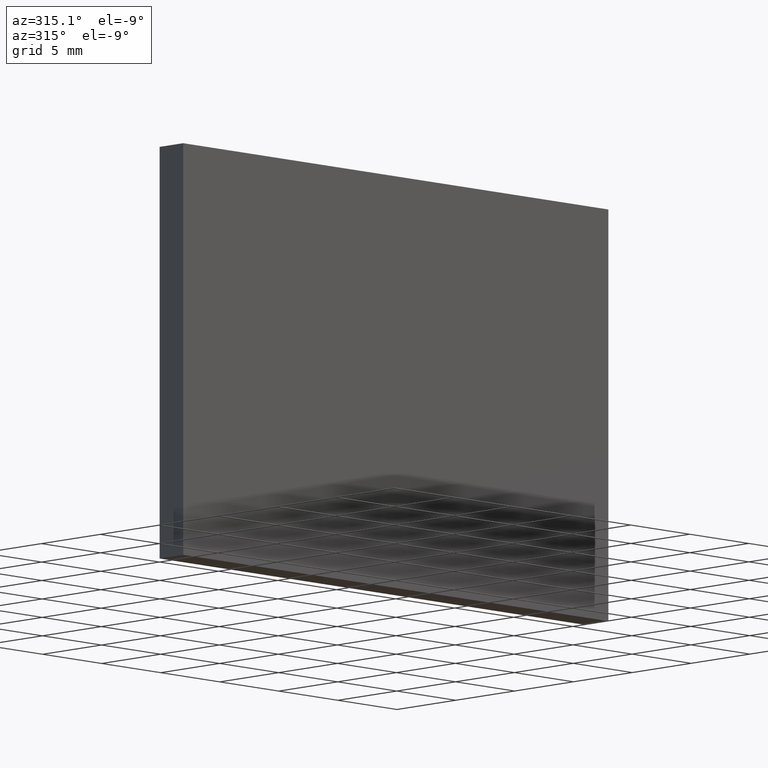
[diagram: clean part render]
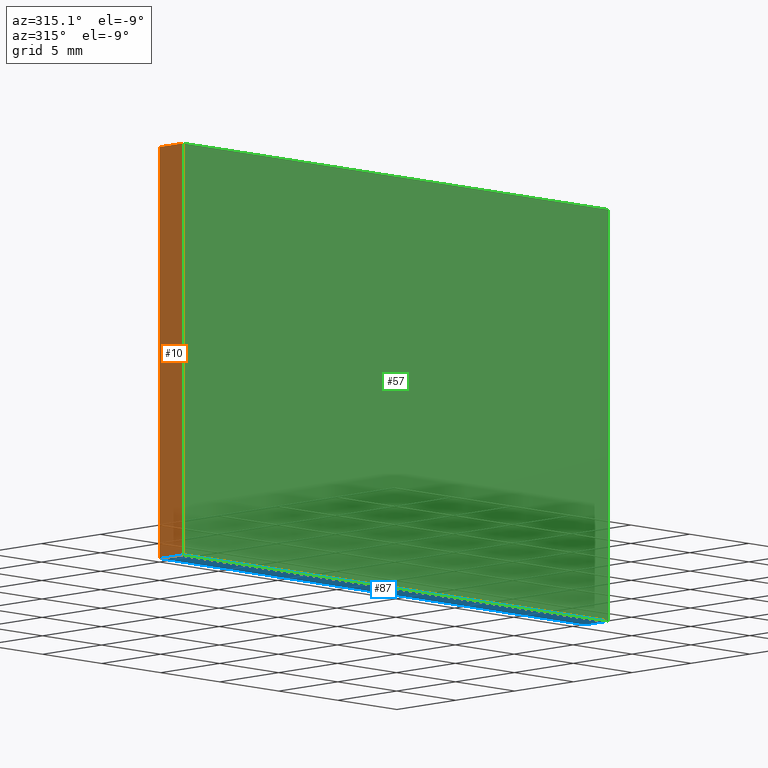
[diagram: same view with three faces highlighted in distinct colors, each labeled with its STEP entity id]
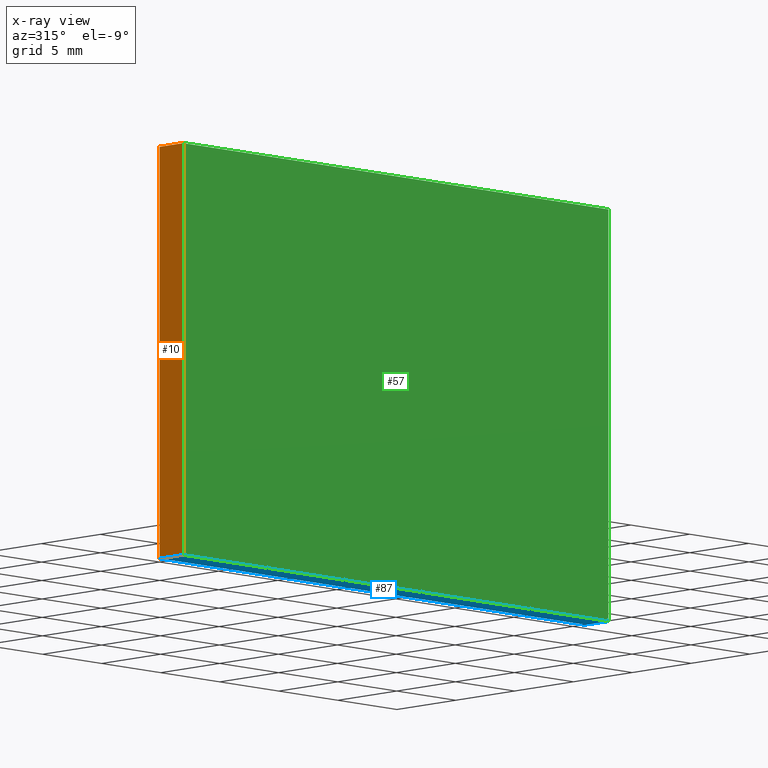
[diagram: x-ray of the same camera — body ghosted, the three highlighted faces saturated]
A machine part, auxiliary view with three faces highlighted in distinct colors.
The next image is the same camera in x-ray (body ghosted, the three faces saturated) — at least one of them is partly hidden behind the body in this view.
Their STEP definitions:

[orange] entity #10 — the highlighted planar face has unit normal (1, 0, 0).
#10 = ADVANCED_FACE ( 'NONE', ( #156 ), #88, .F. ) ;
#17 = VECTOR ( 'NONE', #43, 1000.000000000000000 ) ;
#19 = AXIS2_PLACEMENT_3D ( 'NONE', #151, #45, #133 ) ;
#20 = LINE ( 'NONE', #89, #17 ) ;
#21 = VERTEX_POINT ( 'NONE', #117 ) ;
#22 = DIRECTION ( 'NONE',  ( 0.0000000000000000000, 0.0000000000000000000, 1.000000000000000000 ) ) ;
#23 = DIRECTION ( 'NONE',  ( -0.0000000000000000000, -1.000000000000000000, -0.0000000000000000000 ) ) ;
#28 = CARTESIAN_POINT ( 'NONE',  ( -18.00000000000000400, 2.000000000000000000, -12.49999999999999800 ) ) ;
#30 = ORIENTED_EDGE ( 'NONE', *, *, #51, .F. ) ;
#39 = CARTESIAN_POINT ( 'NONE',  ( -18.00000000000000400, 0.0000000000000000000, -12.49999999999999800 ) ) ;
#43 = DIRECTION ( 'NONE',  ( 0.0000000000000000000, 0.0000000000000000000, 1.000000000000000000 ) ) ;
#45 = DIRECTION ( 'NONE',  ( 1.000000000000000000, 0.0000000000000000000, 0.0000000000000000000 ) ) ;
#47 = EDGE_CURVE ( 'NONE', #162, #122, #137, .T. ) ;
#51 = EDGE_CURVE ( 'NONE', #162, #21, #20, .T. ) ;
#53 = LINE ( 'NONE', #39, #132 ) ;
#56 = ORIENTED_EDGE ( 'NONE', *, *, #67, .F. ) ;
#66 = ORIENTED_EDGE ( 'NONE', *, *, #47, .T. ) ;
#67 = EDGE_CURVE ( 'NONE', #21, #171, #181, .T. ) ;
#88 = PLANE ( 'NONE',  #19 ) ;
#89 = CARTESIAN_POINT ( 'NONE',  ( -18.00000000000000400, 2.000000000000000000, -12.49999999999999800 ) ) ;
#90 = CARTESIAN_POINT ( 'NONE',  ( -18.00000000000000400, 2.000000000000000000, -12.49999999999999800 ) ) ;
#92 = ORIENTED_EDGE ( 'NONE', *, *, #108, .T. ) ;
#97 = VECTOR ( 'NONE', #114, 1000.000000000000000 ) ;
#101 = CARTESIAN_POINT ( 'NONE',  ( -18.00000000000000400, 0.0000000000000000000, 12.50000000000000200 ) ) ;
#108 = EDGE_CURVE ( 'NONE', #122, #171, #53, .T. ) ;
#114 = DIRECTION ( 'NONE',  ( -0.0000000000000000000, -1.000000000000000000, -0.0000000000000000000 ) ) ;
#117 = CARTESIAN_POINT ( 'NONE',  ( -18.00000000000000400, 2.000000000000000000, 12.50000000000000200 ) ) ;
#122 = VERTEX_POINT ( 'NONE', #175 ) ;
#132 = VECTOR ( 'NONE', #22, 1000.000000000000000 ) ;
#133 = DIRECTION ( 'NONE',  ( 0.0000000000000000000, 0.0000000000000000000, -1.000000000000000000 ) ) ;
#137 = LINE ( 'NONE', #28, #97 ) ;
#140 = EDGE_LOOP ( 'NONE', ( #92, #56, #30, #66 ) ) ;
#151 = CARTESIAN_POINT ( 'NONE',  ( -18.00000000000000400, 2.000000000000000000, -12.49999999999999800 ) ) ;
#156 = FACE_OUTER_BOUND ( 'NONE', #140, .T. ) ;
#161 = CARTESIAN_POINT ( 'NONE',  ( -18.00000000000000400, 2.000000000000000000, 12.50000000000000200 ) ) ;
#162 = VERTEX_POINT ( 'NONE', #90 ) ;
#171 = VERTEX_POINT ( 'NONE', #101 ) ;
#172 = VECTOR ( 'NONE', #23, 1000.000000000000000 ) ;
#175 = CARTESIAN_POINT ( 'NONE',  ( -18.00000000000000400, 0.0000000000000000000, -12.49999999999999800 ) ) ;
#181 = LINE ( 'NONE', #161, #172 ) ;

[blue] entity #87 — the highlighted planar face has unit normal (0, 0, 1).
#3 = VERTEX_POINT ( 'NONE', #62 ) ;
#4 = EDGE_CURVE ( 'NONE', #95, #122, #116, .T. ) ;
#25 = DIRECTION ( 'NONE',  ( -1.000000000000000000, -0.0000000000000000000, -0.0000000000000000000 ) ) ;
#28 = CARTESIAN_POINT ( 'NONE',  ( -18.00000000000000400, 2.000000000000000000, -12.49999999999999800 ) ) ;
#29 = DIRECTION ( 'NONE',  ( -1.000000000000000000, -0.0000000000000000000, -0.0000000000000000000 ) ) ;
#36 = LINE ( 'NONE', #60, #110 ) ;
#41 = ORIENTED_EDGE ( 'NONE', *, *, #47, .F. ) ;
#47 = EDGE_CURVE ( 'NONE', #162, #122, #137, .T. ) ;
#60 = CARTESIAN_POINT ( 'NONE',  ( 17.99999999999999600, 2.000000000000000000, -12.49999999999999800 ) ) ;
#61 = CARTESIAN_POINT ( 'NONE',  ( -18.00000000000000400, 0.0000000000000000000, -12.49999999999999800 ) ) ;
#62 = CARTESIAN_POINT ( 'NONE',  ( 17.99999999999999600, 2.000000000000000000, -12.49999999999999800 ) ) ;
#65 = ORIENTED_EDGE ( 'NONE', *, *, #138, .F. ) ;
#71 = VECTOR ( 'NONE', #25, 1000.000000000000000 ) ;
#80 = VECTOR ( 'NONE', #29, 1000.000000000000000 ) ;
#87 = ADVANCED_FACE ( 'NONE', ( #169 ), #192, .F. ) ;
#90 = CARTESIAN_POINT ( 'NONE',  ( -18.00000000000000400, 2.000000000000000000, -12.49999999999999800 ) ) ;
#95 = VERTEX_POINT ( 'NONE', #177 ) ;
#96 = LINE ( 'NONE', #164, #71 ) ;
#97 = VECTOR ( 'NONE', #114, 1000.000000000000000 ) ;
#110 = VECTOR ( 'NONE', #148, 1000.000000000000000 ) ;
#114 = DIRECTION ( 'NONE',  ( -0.0000000000000000000, -1.000000000000000000, -0.0000000000000000000 ) ) ;
#116 = LINE ( 'NONE', #61, #80 ) ;
#122 = VERTEX_POINT ( 'NONE', #175 ) ;
#127 = ORIENTED_EDGE ( 'NONE', *, *, #131, .T. ) ;
#128 = DIRECTION ( 'NONE',  ( 0.0000000000000000000, 0.0000000000000000000, 1.000000000000000000 ) ) ;
#131 = EDGE_CURVE ( 'NONE', #3, #95, #36, .T. ) ;
#135 = EDGE_LOOP ( 'NONE', ( #191, #41, #65, #127 ) ) ;
#137 = LINE ( 'NONE', #28, #97 ) ;
#138 = EDGE_CURVE ( 'NONE', #3, #162, #96, .T. ) ;
#141 = AXIS2_PLACEMENT_3D ( 'NONE', #143, #128, #160 ) ;
#143 = CARTESIAN_POINT ( 'NONE',  ( -18.00000000000000400, 2.000000000000000000, -12.49999999999999800 ) ) ;
#148 = DIRECTION ( 'NONE',  ( -0.0000000000000000000, -1.000000000000000000, -0.0000000000000000000 ) ) ;
#160 = DIRECTION ( 'NONE',  ( 1.000000000000000000, 0.0000000000000000000, -0.0000000000000000000 ) ) ;
#162 = VERTEX_POINT ( 'NONE', #90 ) ;
#164 = CARTESIAN_POINT ( 'NONE',  ( -18.00000000000000400, 2.000000000000000000, -12.49999999999999800 ) ) ;
#169 = FACE_OUTER_BOUND ( 'NONE', #135, .T. ) ;
#175 = CARTESIAN_POINT ( 'NONE',  ( -18.00000000000000400, 0.0000000000000000000, -12.49999999999999800 ) ) ;
#177 = CARTESIAN_POINT ( 'NONE',  ( 17.99999999999999600, 0.0000000000000000000, -12.49999999999999800 ) ) ;
#191 = ORIENTED_EDGE ( 'NONE', *, *, #4, .T. ) ;
#192 = PLANE ( 'NONE',  #141 ) ;

[green] entity #57 — the highlighted planar face has unit normal (0, 1, 0).
#2 = VECTOR ( 'NONE', #142, 1000.000000000000000 ) ;
#4 = EDGE_CURVE ( 'NONE', #95, #122, #116, .T. ) ;
#18 = ORIENTED_EDGE ( 'NONE', *, *, #125, .F. ) ;
#22 = DIRECTION ( 'NONE',  ( 0.0000000000000000000, 0.0000000000000000000, 1.000000000000000000 ) ) ;
#29 = DIRECTION ( 'NONE',  ( -1.000000000000000000, -0.0000000000000000000, -0.0000000000000000000 ) ) ;
#34 = ORIENTED_EDGE ( 'NONE', *, *, #4, .F. ) ;
#39 = CARTESIAN_POINT ( 'NONE',  ( -18.00000000000000400, 0.0000000000000000000, -12.49999999999999800 ) ) ;
#42 = EDGE_LOOP ( 'NONE', ( #167, #18, #188, #34 ) ) ;
#53 = LINE ( 'NONE', #39, #132 ) ;
#57 = ADVANCED_FACE ( 'NONE', ( #59 ), #194, .F. ) ;
#59 = FACE_OUTER_BOUND ( 'NONE', #42, .T. ) ;
#61 = CARTESIAN_POINT ( 'NONE',  ( -18.00000000000000400, 0.0000000000000000000, -12.49999999999999800 ) ) ;
#70 = DIRECTION ( 'NONE',  ( 0.0000000000000000000, 1.000000000000000000, 0.0000000000000000000 ) ) ;
#78 = VECTOR ( 'NONE', #163, 1000.000000000000000 ) ;
#80 = VECTOR ( 'NONE', #29, 1000.000000000000000 ) ;
#84 = CARTESIAN_POINT ( 'NONE',  ( -18.00000000000000400, 0.0000000000000000000, 12.50000000000000200 ) ) ;
#95 = VERTEX_POINT ( 'NONE', #177 ) ;
#101 = CARTESIAN_POINT ( 'NONE',  ( -18.00000000000000400, 0.0000000000000000000, 12.50000000000000200 ) ) ;
#108 = EDGE_CURVE ( 'NONE', #122, #171, #53, .T. ) ;
#116 = LINE ( 'NONE', #61, #80 ) ;
#122 = VERTEX_POINT ( 'NONE', #175 ) ;
#124 = VERTEX_POINT ( 'NONE', #159 ) ;
#125 = EDGE_CURVE ( 'NONE', #171, #124, #130, .T. ) ;
#130 = LINE ( 'NONE', #84, #2 ) ;
#132 = VECTOR ( 'NONE', #22, 1000.000000000000000 ) ;
#142 = DIRECTION ( 'NONE',  ( 1.000000000000000000, 0.0000000000000000000, 0.0000000000000000000 ) ) ;
#150 = EDGE_CURVE ( 'NONE', #124, #95, #201, .T. ) ;
#159 = CARTESIAN_POINT ( 'NONE',  ( 18.00000000000000400, 0.0000000000000000000, 12.50000000000000200 ) ) ;
#163 = DIRECTION ( 'NONE',  ( -2.775557561562891400E-016, -0.0000000000000000000, -1.000000000000000000 ) ) ;
#166 = AXIS2_PLACEMENT_3D ( 'NONE', #198, #70, #178 ) ;
#167 = ORIENTED_EDGE ( 'NONE', *, *, #150, .F. ) ;
#171 = VERTEX_POINT ( 'NONE', #101 ) ;
#175 = CARTESIAN_POINT ( 'NONE',  ( -18.00000000000000400, 0.0000000000000000000, -12.49999999999999800 ) ) ;
#177 = CARTESIAN_POINT ( 'NONE',  ( 17.99999999999999600, 0.0000000000000000000, -12.49999999999999800 ) ) ;
#178 = DIRECTION ( 'NONE',  ( 0.0000000000000000000, -0.0000000000000000000, 1.000000000000000000 ) ) ;
#188 = ORIENTED_EDGE ( 'NONE', *, *, #108, .F. ) ;
#194 = PLANE ( 'NONE',  #166 ) ;
#196 = CARTESIAN_POINT ( 'NONE',  ( 17.99999999999999600, 0.0000000000000000000, -12.49999999999999800 ) ) ;
#198 = CARTESIAN_POINT ( 'NONE',  ( 0.0000000000000000000, 0.0000000000000000000, 0.0000000000000000000 ) ) ;
#201 = LINE ( 'NONE', #196, #78 ) ;